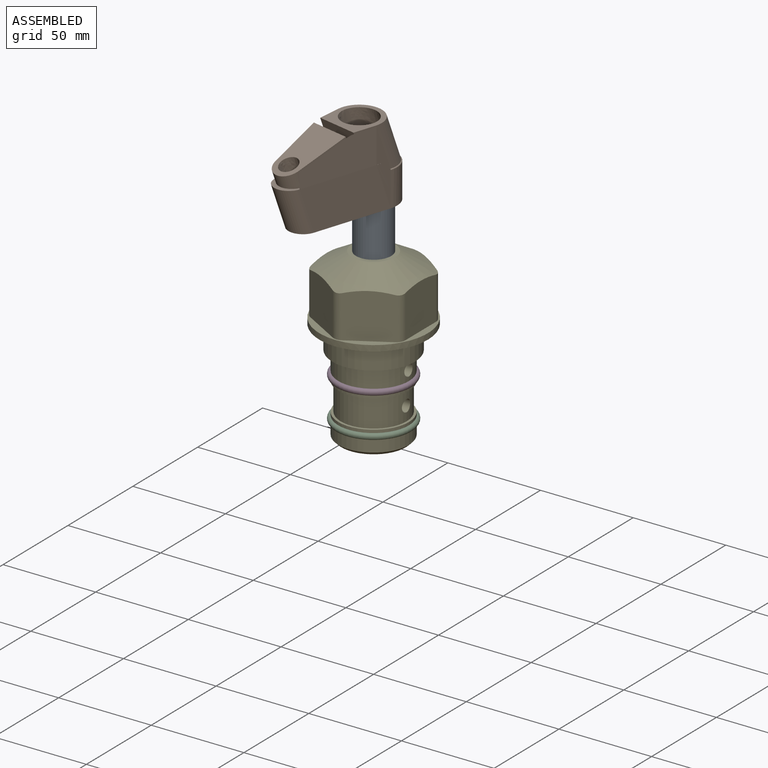
[diagram: assembled view]
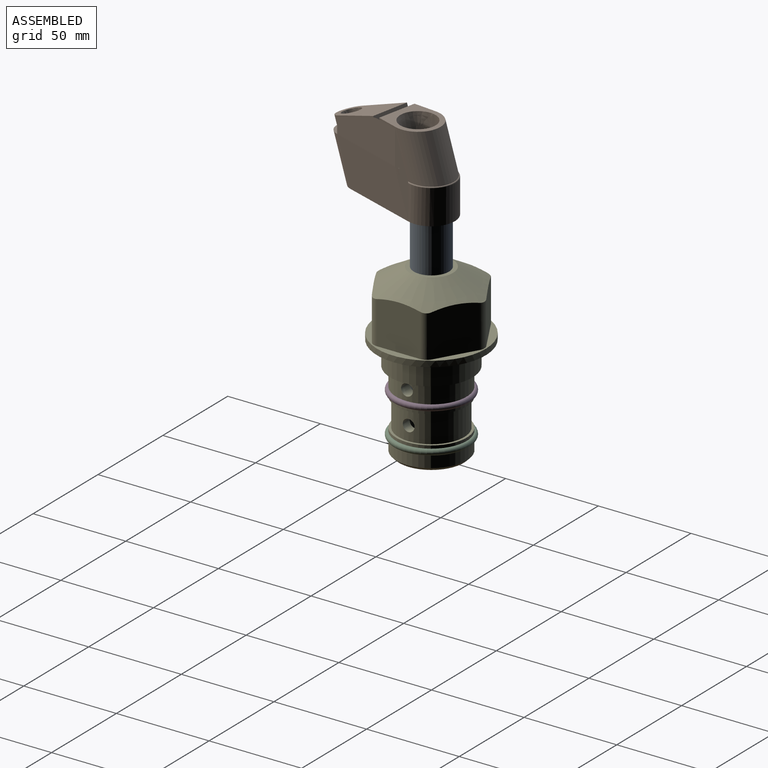
[diagram: assembled view, second angle]
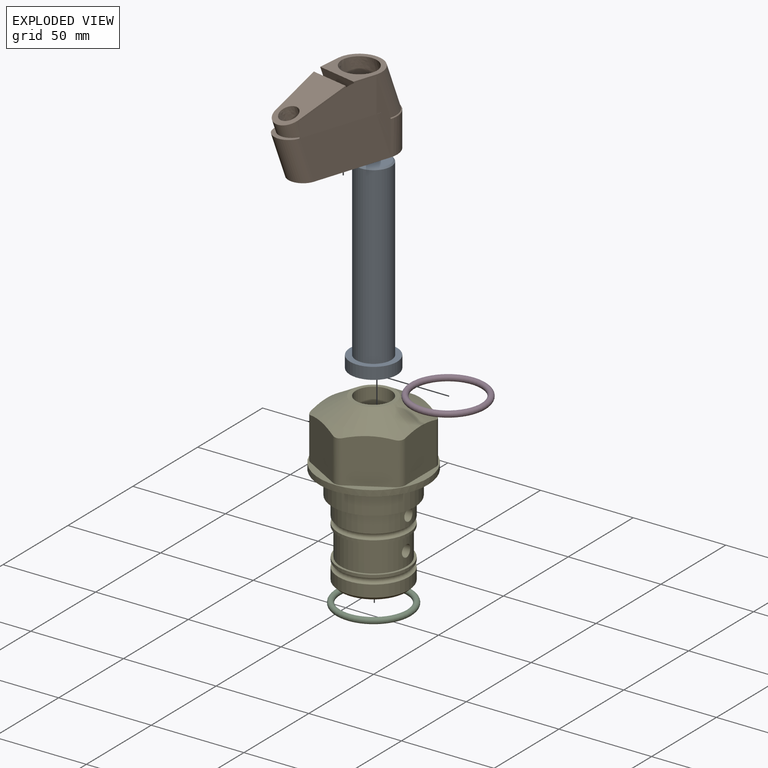
[diagram: exploded view]
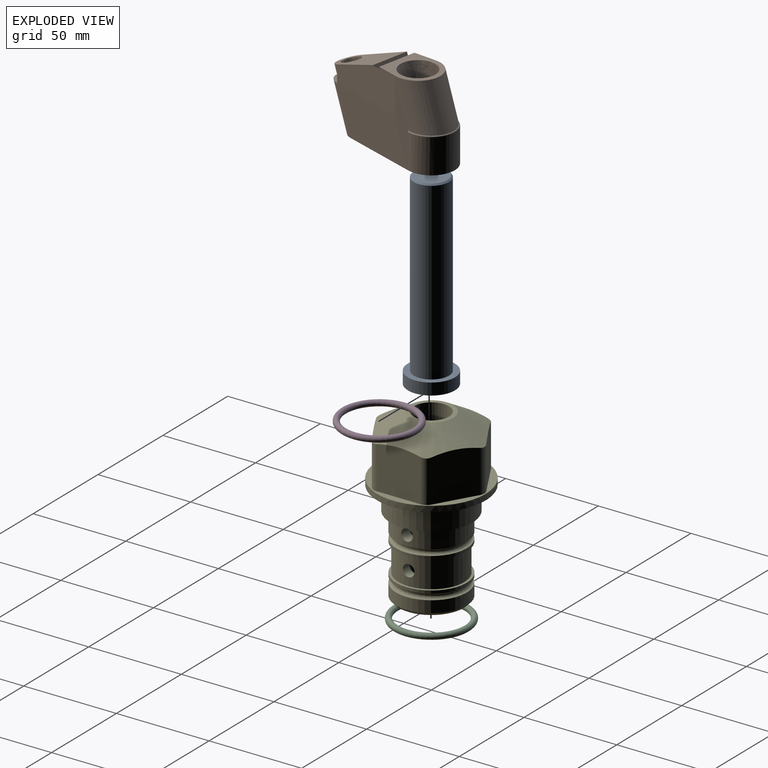
[diagram: exploded view, second angle]
ASSEMBLY  parts=5 mates=3
PART A: 6 faces, bbox 25.4x25.4x101.6 mm
  f0: plane 17.46x17.46mm, normal (0,0,1), area 239.5mm2, adj f5
  f1: plane 25.4x25.4mm, normal (0,0,-1), area 506.7mm2, adj f2
  f2: cylinder r=12.7mm len=25.4mm, axis (0,0,1), area 506.7mm2, adj f1,f3
  f3: plane 25.4x25.4mm, normal (0,0,1), area 221.7mm2, adj f2,f4
  f4: cylinder r=9.53mm len=94.46mm, axis (0,0,1), area 5653mm2, adj f3,f5
  f5: cone r=8.73mm half-angle=45deg, axis (0,0,-1), area 64.4mm2, adj f0,f4
PART B: 82 faces, bbox 32.6x78.4x48 mm
  f0: extruded ~23.87x11.51mm, area 62mm2, adj f28,f29,f34,f55,f60
  f1: extruded ~23.87x14.35mm, area 85.7mm2, adj f11,f21,f36,f55,f58,f59,f60
  f2: extruded ~18.77x15.15mm, area 290.2mm2, adj f17,f32,f69
  f3: extruded ~5.58x2.08mm, area 0.6mm2, adj f8,f11,f14,f66
  f4: extruded ~23.87x19.05mm, area 635.3mm2, adj f17,f32,f55,f57
  f5: extruded ~27.34x18.21mm, area 611.7mm2, adj f10,f12,f15,f16,f56,f68
  f6: extruded ~14.77x11.27mm, area 210.7mm2, adj f7,f9,f10,f11
  f7: plane 32.54x18.28mm, normal (-0.99,0.1,-0.04), area 400.1mm2, adj f6,f8,f10,f11
  f8: plane 23.87x20.55mm, normal (0,-0.94,0.34), area 419.3mm2, adj f3,f7,f9,f10,f11,f13,f14,f33
  f9: plane 32.54x18.28mm, normal (0.99,0.1,-0.04), area 400.1mm2, adj f6,f8,f10,f11
  f10: plane 32.49x20.55mm, normal (0,0.34,0.94), area 489.9mm2, adj f5,f6,f7,f8,f9
  f11: plane 60.17x30.17mm, normal (0,0,1), area 191.5mm2, adj f1,f3,f6,f7,f8,f9,f13,f14
  f12: plane 9.67x6.51mm, normal (0,0,1), area 32.3mm2, adj f5,f15,f16
  f13: extruded ~5.58x2.26mm, area 9.5mm2, adj f8,f11,f33,f65
  f14: extruded ~5.58x2.26mm, area 9.5mm2, adj f3,f8,f11,f66
  f15: extruded ~13.41x6.69mm, area 98.1mm2, adj f5,f12,f68
  f16: extruded ~23.87x13.45mm, area 305.8mm2, adj f5,f12,f55,f56
  f17: extruded ~27.74x23.87mm, area 1424.6mm2, adj f2,f4,f22,f32,f57,f69
  f18: plane 23.87x21.49mm, normal (0,0.94,-0.34), area 505mm2, adj f11,f19,f21,f22,f24,f67
  f19: plane 23.87x20.97mm, normal (-0.99,0.11,-0.04), area 242.1mm2, adj f11,f18,f20,f22,f23,f43
  f20: extruded ~24.38x23.87mm, area 1008.6mm2, adj f19,f21,f22,f61
  f21: plane 23.87x20.97mm, normal (0.99,0.11,-0.04), area 242.1mm2, adj f1,f11,f18,f20,f22,f58
  f22: plane 25.83x24.38mm, normal (0,0,1), area 262.2mm2, adj f17,f18,f19,f20,f21
  f23: extruded ~5.33x3.24mm, area 6.9mm2, adj f11,f19,f30,f43
  f24: extruded ~13.54x4.82mm, area 76.4mm2, adj f11,f18,f67
  f25: extruded ~19.28x10.92mm, area 81.1mm2, adj f11,f26,f30,f31
  f26: plane 32.36x17.81mm, normal (0.99,-0.1,0.04), area 386mm2, adj f11,f25,f27,f31
  f27: plane 8.39x3.05mm, normal (1,0,0), area 12.8mm2, adj f11,f26,f31
  f28: plane 51.02x23.87mm, normal (-0.99,0.11,-0.04), area 1017.5mm2, adj f0,f31,f35,f55
  f29: plane 34.66x8.69mm, normal (-1,0,0), area 104.7mm2, adj f0,f30,f31,f34,f60
  f30: plane 23.87x20.97mm, normal (0.99,-0.11,0.04), area 242.2mm2, adj f11,f23,f25,f29,f31,f43
  f31: plane 42.33x18.54mm, normal (-0.99,0.11,0), area 647mm2, adj f25,f26,f27,f28,f29,f30
  f32: plane 19.05x9.24mm, normal (0,0,1), area 71.2mm2, adj f2,f4,f17
  f33: extruded ~5.58x2.08mm, area 0.6mm2, adj f8,f11,f13,f65
  f34: plane 2.82x0.08mm, normal (0,0,1), area 0.1mm2, adj f0,f29
  f35: extruded ~23.87x15.78mm, area 572.2mm2, adj f11,f28,f36,f55
  f36: plane 51.02x23.87mm, normal (0.99,0.11,-0.04), area 1017.5mm2, adj f1,f11,f35,f55
  f37: cylinder r=7.94mm len=7.28mm, axis (0,0,-1), area 52.1mm2, adj f38,f39,f40,f55
  f38: cylinder r=1.59mm len=7.28mm, axis (0,0,-1), area 22.1mm2, adj f37,f41,f54,f55
  f39: cylinder r=1.59mm len=7.28mm, axis (0,0,-1), area 22.1mm2, adj f37,f42,f52,f55
  f40: bspline ~8.31x1.84mm, area 15.3mm2, adj f37,f41,f42,f51
  f41: sphere r=1.59mm, area 3.3mm2, adj f38,f40,f48
  f42: sphere r=1.59mm, area 3.3mm2, adj f39,f40,f45
  f43: cylinder r=0.51mm len=2.45mm, axis (0.11,0.99,0), area 1.5mm2, adj f19,f23,f30,f61
  f44: cylinder r=1.59mm len=0.97mm, axis (0,0,-1), area 0.1mm2, adj f52,f55,f62
  f45: cylinder r=1.59mm len=18.33mm, axis (0.1,0.93,-0.34), area 46.7mm2, adj f42,f46,f51,f52,f62
  f46: bspline ~1.47x1.03mm, area 0.3mm2, adj f45,f47,f62
  f47: cylinder r=9.53mm len=0.42mm, axis (-1,0,0), area 0mm2, adj f46,f51,f62,f64
  f48: cylinder r=1.59mm len=18.33mm, axis (0.1,-0.93,0.34), area 46.7mm2, adj f41,f49,f51,f54,f63
  f49: bspline ~1.47x1.03mm, area 0.3mm2, adj f48,f50,f63
  f50: cylinder r=9.53mm len=0.42mm, axis (-1,0,0), area 0mm2, adj f49,f51,f63,f64
  f51: plane 17.94x12.32mm, normal (0,-0.34,-0.94), area 181.2mm2, adj f40,f45,f47,f48,f50,f64
  f52: plane 21.87x14.04mm, normal (0.99,-0.11,0), area 218.3mm2, adj f39,f44,f45,f55,f62
  f53: cylinder r=1.59mm len=0.97mm, axis (0,0,-1), area 0.1mm2, adj f54,f55,f63
  f54: plane 21.87x14.04mm, normal (-0.99,-0.11,0), area 218.3mm2, adj f38,f48,f53,f55,f63
  f55: plane 63.5x25.4mm, normal (0,0,-1), area 561.7mm2, adj f0,f1,f4,f16,f28,f35,f36,f37
  f56: cylinder r=4.76mm len=9.53mm, axis (0,0,-1), area 108.8mm2, adj f5,f16,f55
  f57: cylinder r=9.53mm len=19.05mm, axis (0,0,-1), area 502.5mm2, adj f4,f17,f55
  f58: cylinder r=0.51mm len=2.45mm, axis (0.11,-0.99,0), area 1.5mm2, adj f1,f21,f59,f61
  f59: plane 10.95x2.55mm, normal (0.99,0.11,0), area 12.4mm2, adj f1,f58,f60
  f60: cylinder r=12.7mm len=25.4mm, axis (0,0,-1), area 781.3mm2, adj f0,f1,f29,f55,f59,f61
  f61: torus R=12.19mm, axis (0,0,1), area 33.6mm2, adj f20,f43,f58,f60
  f62: extruded ~15.36x7.18mm, area 40.4mm2, adj f44,f45,f46,f47,f52,f55,f64
  f63: extruded ~15.36x7.18mm, area 40.4mm2, adj f48,f49,f50,f53,f54,f55,f64
  f64: extruded ~15.32x11.68mm, area 193mm2, adj f47,f50,f51,f55,f62,f63
  f65: cylinder r=12.7mm len=1.63mm, axis (-1,0,0), area 0.2mm2, adj f8,f13,f33
  f66: cylinder r=12.7mm len=1.63mm, axis (-1,0,0), area 0.2mm2, adj f3,f8,f14
  f67: cylinder r=12.7mm len=13.54mm, axis (-1,0,0), area 25.7mm2, adj f18,f24
  f68: cylinder r=4.76mm len=6.69mm, axis (0,0,-1), area 0mm2, adj f5,f15
  f69: cylinder r=9.53mm len=18.77mm, axis (0,0,-1), area 198.5mm2, adj f2,f17
  f70: bspline ~11.06x2.73mm, area 20.8mm2, adj f71,f73,f77,f79
  f71: cylinder r=9.53mm len=10.77mm, axis (-1,0,0), area 7.5mm2, adj f70,f75,f80,f81
  f72: sphere r=1.59mm, area 2.7mm2, adj f73,f74,f81
  f73: torus R=14.29mm, axis (0,0,1), area 5.8mm2, adj f70,f72,f75,f79,f81
  f74: cylinder r=1.59mm len=3.98mm, axis (0,0,-1), area 3.1mm2, adj f72,f79,f81
  f75: plane 2.28x0.93mm, normal (0,0,-1), area 0.5mm2, adj f71,f73,f81
  f76: sphere r=1.59mm, area 2.7mm2, adj f77,f78,f81
  f77: torus R=14.29mm, axis (0,0,1), area 5.8mm2, adj f70,f76,f79,f80,f81
  f78: cylinder r=1.59mm len=3.98mm, axis (0,0,-1), area 3.1mm2, adj f76,f79,f81
  f79: cylinder r=12.7mm len=11.68mm, axis (0,0,-1), area 61.6mm2, adj f70,f73,f74,f77,f78,f81
  f80: plane 2.28x0.93mm, normal (0,0,-1), area 0.5mm2, adj f71,f77,f81
  f81: extruded ~14.74x7.15mm, area 104.1mm2, adj f71,f72,f73,f74,f75,f76,f77,f78
PART C: 1 faces, bbox 44.7x44.7x3.2 mm
  f0: torus R=19.05mm, axis (0,0,1), area 1193.9mm2
PART D: same geometry as C
PART E: 36 faces, bbox 58.7x58.7x91.2 mm
  f0: cylinder r=17.78mm len=35.56mm, axis (0,0,1), area 1670.8mm2, adj f23,f24,f31
  f1: cylinder r=19.05mm len=38.1mm, axis (0,0,1), area 1191.9mm2, adj f26,f27,f30
  f2: plane 58.66x58.66mm, normal (0,0,-1), area 1150.6mm2, adj f3,f28
  f3: cylinder r=29.33mm len=58.66mm, axis (0,0,-1), area 585.1mm2, adj f2,f4
  f4: plane 58.66x58.66mm, normal (0,0,1), area 475.9mm2, adj f3,f5,f6,f7,f8,f9,f10,f11
  f5: plane 24.5x20.32mm, normal (-0.5,0.87,0), area 562.8mm2, adj f4,f15,f16,f17
  f6: plane 24.5x20.32mm, normal (0.5,0.87,0), area 562.8mm2, adj f4,f14,f15,f17
  f7: plane 24.5x23.48mm, normal (1,0,0), area 562.8mm2, adj f4,f13,f14,f17
  f8: plane 24.5x20.32mm, normal (0.5,-0.87,0), area 562.8mm2, adj f4,f12,f13,f17
  f9: plane 24.5x20.32mm, normal (-0.5,-0.87,0), area 562.8mm2, adj f4,f11,f12,f17
  f10: plane 24.5x23.48mm, normal (-1,0,0), area 562.8mm2, adj f4,f11,f16,f17
  f11: cylinder r=5.08mm len=23.01mm, axis (0,0,-1), area 121.2mm2, adj f4,f9,f10,f17
  f12: cylinder r=5.08mm len=23.01mm, axis (0,0,-1), area 121.2mm2, adj f4,f8,f9,f17
  f13: cylinder r=5.08mm len=23.01mm, axis (0,0,-1), area 121.2mm2, adj f4,f7,f8,f17
  f14: cylinder r=5.08mm len=23.01mm, axis (0,0,-1), area 121.2mm2, adj f4,f6,f7,f17
  f15: cylinder r=5.08mm len=23.01mm, axis (0,0,-1), area 121.2mm2, adj f4,f5,f6,f17
  f16: cylinder r=5.08mm len=23.01mm, axis (0,0,-1), area 121.2mm2, adj f4,f5,f10,f17
  f17: cone r=11.73mm half-angle=60deg, axis (0,0,-1), area 2071.8mm2, adj f5,f6,f7,f8,f9,f10,f11,f12
  f18: plane 23.46x23.46mm, normal (0,0,1), area 147.4mm2, adj f17,f35
  f19: plane 34.93x34.93mm, normal (0,0,-1), area 958mm2, adj f29
  f20: cylinder r=19.05mm len=38.1mm, axis (0,0,1), area 760.1mm2, adj f21,f29
  f21: torus R=19.05mm, axis (0,0,1), area 565.3mm2, adj f20,f22
  f22: cylinder r=19.05mm len=38.1mm, axis (0,0,1), area 190mm2, adj f21,f23
  f23: plane 38.1x38.1mm, normal (0,0,1), area 146.9mm2, adj f0,f22
  f24: plane 38.1x38.1mm, normal (0,0,-1), area 146.9mm2, adj f0,f25
  f25: cylinder r=19.05mm len=38.1mm, axis (0,0,1), area 190mm2, adj f24,f26
  f26: torus R=19.05mm, axis (0,0,1), area 565.3mm2, adj f1,f25
  f27: plane 44.45x44.45mm, normal (0,0,-1), area 411.7mm2, adj f1,f28
  f28: cylinder r=22.23mm len=44.45mm, axis (0,0,1), area 1773.5mm2, adj f2,f27
  f29: cone r=19.05mm half-angle=45deg, axis (0,0,1), area 257.5mm2, adj f19,f20
  f30: cylinder r=3.17mm len=6.75mm, axis (-1,0,0), area 128mm2, adj f1,f33
  f31: cylinder r=3.17mm len=6.35mm, axis (-1,0,0), area 102.5mm2, adj f0,f33
  f32: plane 25.4x25.4mm, normal (0,0,1), area 506.7mm2, adj f33
  f33: cylinder r=12.7mm len=66.42mm, axis (0,0,-1), area 5236.2mm2, adj f30,f31,f32,f34
  f34: cone r=9.53mm half-angle=30deg, axis (0,0,-1), area 443.4mm2, adj f33,f35
  f35: cylinder r=9.53mm len=19.05mm, axis (0,0,-1), area 849mm2, adj f18,f34
PLACE A rot(axis=(0,0,-1),101.7deg) t=(0,0,6.38)mm
PLACE B rot(axis=(0,0,1),168.3deg) t=(0,0,60.99)mm
PLACE C t=(0,0,-21.59)mm
PLACE D at identity
PLACE E at identity fixed
MATE fastened C.f0 <-> E.f0  axis (0,0,1) through (0,0,-46.1)mm
MATE cylindrical A.f2 <-> E.f0  axis (0,0,1) through (0,0,32.01)mm
MATE fastened B.f57 <-> A.f2  axis (0,0,1) through (0,0,80.04)mm
